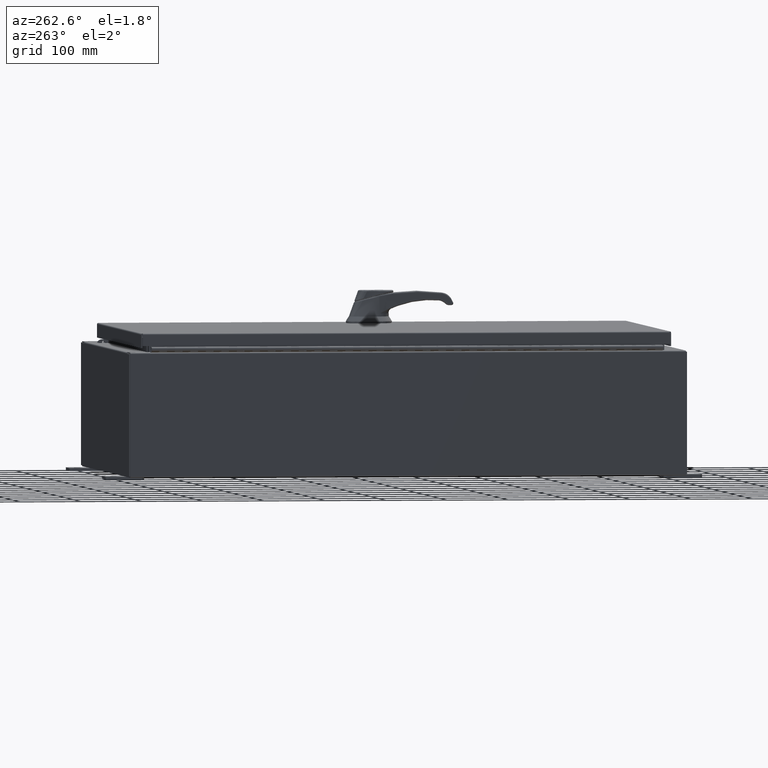
[diagram: clean part render]
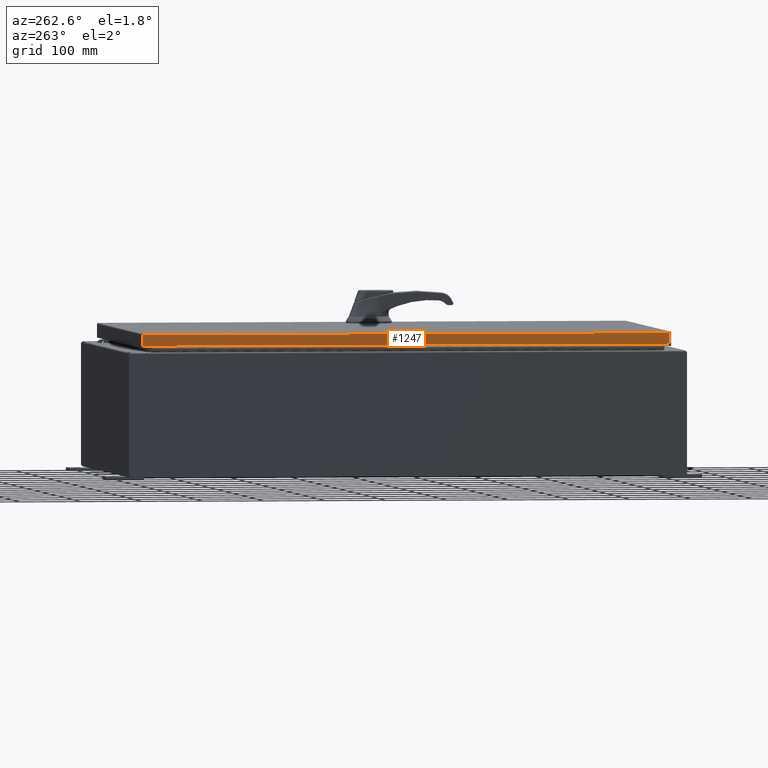
[diagram: same view with one face highlighted and labeled with its STEP entity id]
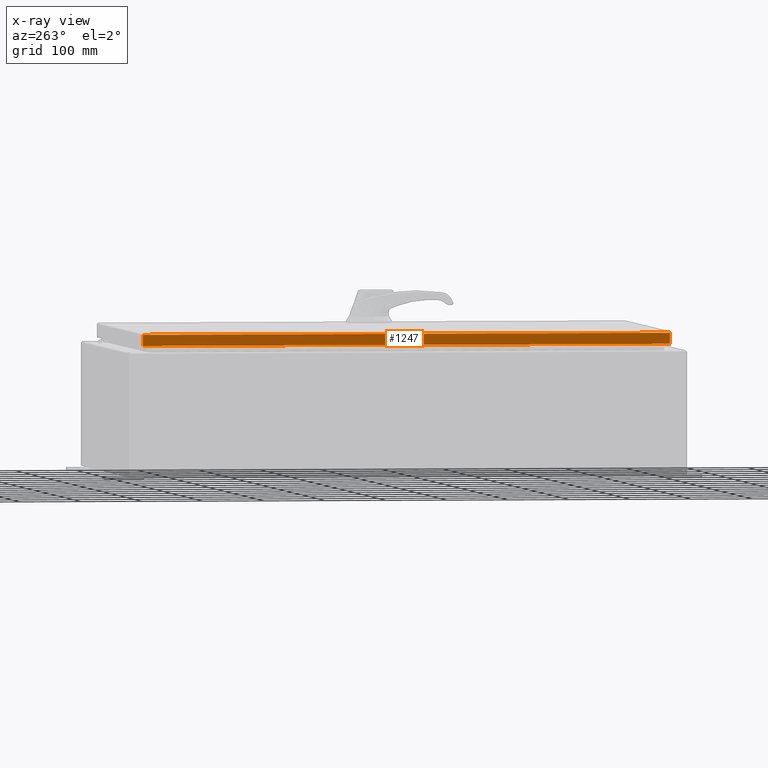
[diagram: x-ray of the same camera — body ghosted, the highlighted face saturated]
A machine part, auxiliary view. The second image highlights one B-rep face of the part: STEP entity #1247.
The next image is the same camera in x-ray: the body ghosted, the highlighted face saturated — about 0% of this face is hidden behind the body in this view.
In plain terms, the highlighted planar face has unit normal (1, 0, -0).
Its self-contained STEP definition (entity closure, byte-faithful):
#1247 = ADVANCED_FACE ( 'NONE', ( #29986 ), #107462, .F. ) ;
#4557 = LINE ( 'NONE', #38669, #74519 ) ;
#9089 = LINE ( 'NONE', #87460, #34395 ) ;
#13573 = EDGE_CURVE ( 'NONE', #118980, #80132, #51504, .T. ) ;
#15281 = CARTESIAN_POINT ( 'NONE',  ( -11.07800000000000500, -17.09399999999999800, -0.7949999999999997100 ) ) ;
#20867 = CARTESIAN_POINT ( 'NONE',  ( -11.07800000000000300, -7.081645506917722700E-016, 3.387282206785411200E-014 ) ) ;
#20959 = DIRECTION ( 'NONE',  ( -3.034122441942816500E-015, 6.982962677686265900E-015, -1.000000000000000000 ) ) ;
#22535 = AXIS2_PLACEMENT_3D ( 'NONE', #20867, #102949, #50056 ) ;
#29986 = FACE_OUTER_BOUND ( 'NONE', #69990, .T. ) ;
#34395 = VECTOR ( 'NONE', #20959, 39.37007874015748100 ) ;
#38669 = CARTESIAN_POINT ( 'NONE',  ( -11.07800000000000300, 17.00515786437627600, 1.526192047629567600E-013 ) ) ;
#42263 = CARTESIAN_POINT ( 'NONE',  ( -11.07800000000000300, -17.09399999999999800, -0.08770000000000004200 ) ) ;
#45043 = LINE ( 'NONE', #42263, #70283 ) ;
#45546 = EDGE_CURVE ( 'NONE', #64714, #118980, #9089, .T. ) ;
#50056 = DIRECTION ( 'NONE',  ( -3.034122441942816500E-015, 0.0000000000000000000, -1.000000000000000000 ) ) ;
#51504 = LINE ( 'NONE', #15281, #99151 ) ;
#63965 = CARTESIAN_POINT ( 'NONE',  ( -11.07800000000000500, -17.00515786437626200, -0.7949999999999996000 ) ) ;
#64714 = VERTEX_POINT ( 'NONE', #92897 ) ;
#64873 = CARTESIAN_POINT ( 'NONE',  ( -11.07800000000000500, 17.00515786437627600, -0.08770000000000223500 ) ) ;
#65418 = ORIENTED_EDGE ( 'NONE', *, *, #13573, .F. ) ;
#69039 = ORIENTED_EDGE ( 'NONE', *, *, #94487, .T. ) ;
#69990 = EDGE_LOOP ( 'NONE', ( #112380, #69039, #65418, #76445 ) ) ;
#70283 = VECTOR ( 'NONE', #99262, 39.37007874015748100 ) ;
#74519 = VECTOR ( 'NONE', #105132, 39.37007874015748100 ) ;
#76445 = ORIENTED_EDGE ( 'NONE', *, *, #45546, .F. ) ;
#80132 = VERTEX_POINT ( 'NONE', #99557 ) ;
#80880 = EDGE_CURVE ( 'NONE', #97625, #64714, #45043, .T. ) ;
#87460 = CARTESIAN_POINT ( 'NONE',  ( -11.07800000000000300, -17.00515786437626500, -0.07469999999999976700 ) ) ;
#90906 = DIRECTION ( 'NONE',  ( -6.392530697705073700E-017, 1.000000000000000000, 1.238552822680358100E-016 ) ) ;
#92897 = CARTESIAN_POINT ( 'NONE',  ( -11.07800000000000300, -17.00515786437626200, -0.08770000000000115200 ) ) ;
#94487 = EDGE_CURVE ( 'NONE', #97625, #80132, #4557, .T. ) ;
#97625 = VERTEX_POINT ( 'NONE', #64873 ) ;
#99151 = VECTOR ( 'NONE', #90906, 39.37007874015748100 ) ;
#99262 = DIRECTION ( 'NONE',  ( 6.392530697705130400E-017, -1.000000000000000000, 6.392530697705074900E-017 ) ) ;
#99557 = CARTESIAN_POINT ( 'NONE',  ( -11.07800000000000500, 17.00515786437628000, -0.7949999999999954900 ) ) ;
#102949 = DIRECTION ( 'NONE',  ( 1.000000000000000000, 6.392530697705110700E-017, -3.034122441942816500E-015 ) ) ;
#105132 = DIRECTION ( 'NONE',  ( -3.034122441942816500E-015, 6.982962677686265900E-015, -1.000000000000000000 ) ) ;
#107462 = PLANE ( 'NONE',  #22535 ) ;
#112380 = ORIENTED_EDGE ( 'NONE', *, *, #80880, .F. ) ;
#118980 = VERTEX_POINT ( 'NONE', #63965 ) ;